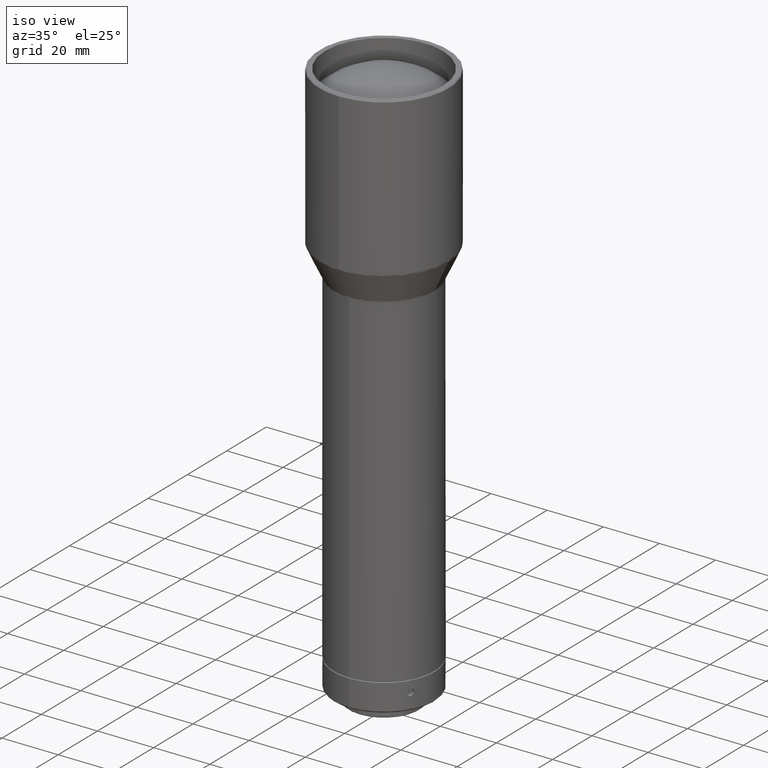
[diagram: clean part render]
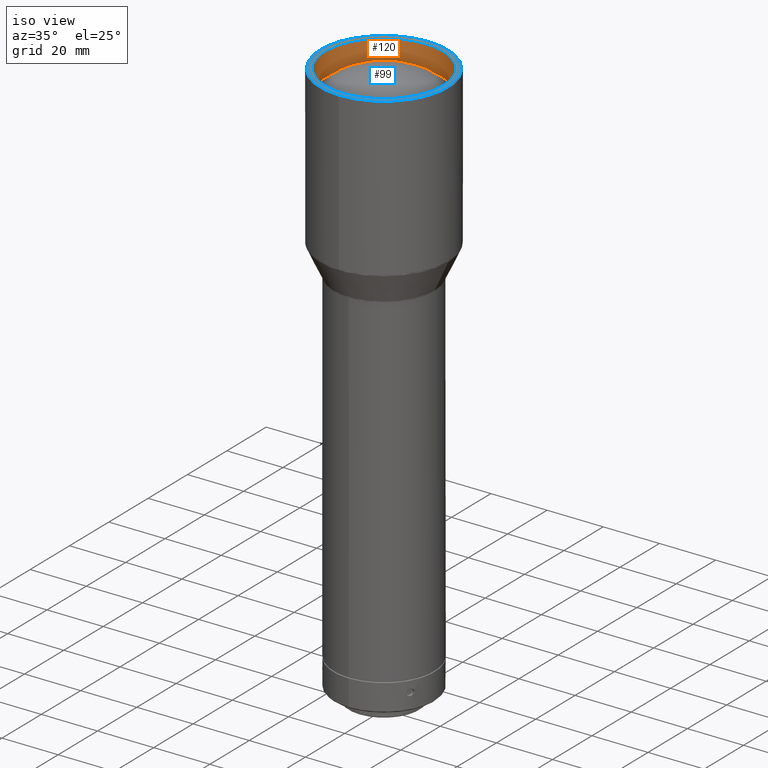
[diagram: same view with the hole feature highlighted: cylindrical wall and planar end face, labeled with their STEP entity ids]
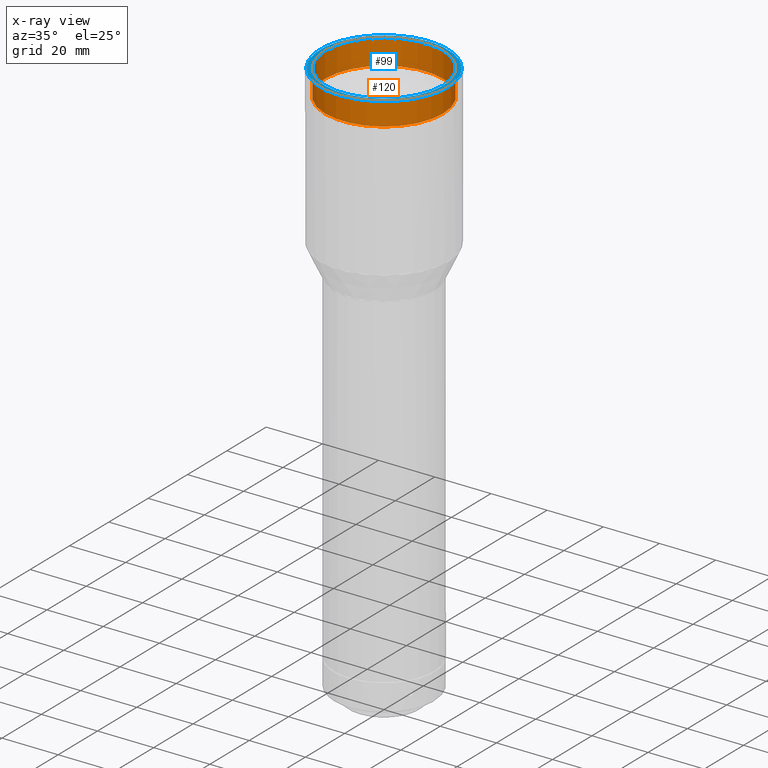
[diagram: x-ray of the same camera — body ghosted, the hole faces saturated]
A machine part, iso view. The highlighted faces form one hole feature of diameter 42 mm: the cylindrical wall (entity #120, orange) and its adjacent planar end face (entity #99, blue) — they share a circular edge in the B-rep.
The next image is the same camera in x-ray (body ghosted, the hole faces saturated) — the bore reads through the body.
Wall:
#73 = DIRECTION ( 'NONE',  ( -0.000000000000000000, -0.000000000000000000, 1.000000000000000000 ) ) ;
#120 = ADVANCED_FACE ( 'NONE', ( #802, #139 ), #546, .F. ) ;
#133 = AXIS2_PLACEMENT_3D ( 'NONE', #678, #433, #749 ) ;
#139 = FACE_OUTER_BOUND ( 'NONE', #445, .T. ) ;
#176 = EDGE_CURVE ( 'NONE', #767, #767, #536, .T. ) ;
#183 = EDGE_LOOP ( 'NONE', ( #187 ) ) ;
#184 = CARTESIAN_POINT ( 'NONE',  ( 0.000000000000000000, 0.000000000000000000, -567.0000000000001137 ) ) ;
#187 = ORIENTED_EDGE ( 'NONE', *, *, #727, .F. ) ;
#300 = VERTEX_POINT ( 'NONE', #374 ) ;
#311 = CARTESIAN_POINT ( 'NONE',  ( 21.00000000000000355, 0.000000000000000000, -567.0000000000001137 ) ) ;
#328 = DIRECTION ( 'NONE',  ( 1.000000000000000000, 0.000000000000000000, 0.000000000000000000 ) ) ;
#374 = CARTESIAN_POINT ( 'NONE',  ( 21.00000000000000355, 0.000000000000000000, -576.0000000000001137 ) ) ;
#433 = DIRECTION ( 'NONE',  ( 0.000000000000000000, 0.000000000000000000, 1.000000000000000000 ) ) ;
#445 = EDGE_LOOP ( 'NONE', ( #847 ) ) ;
#458 = CARTESIAN_POINT ( 'NONE',  ( 0.000000000000000000, 0.000000000000000000, -576.0000000000001137 ) ) ;
#500 = AXIS2_PLACEMENT_3D ( 'NONE', #184, #723, #518 ) ;
#518 = DIRECTION ( 'NONE',  ( 1.000000000000000000, 0.000000000000000000, 0.000000000000000000 ) ) ;
#536 = CIRCLE ( 'NONE', #500, 21.00000000000000355 ) ;
#546 = CYLINDRICAL_SURFACE ( 'NONE', #712, 21.00000000000000355 ) ;
#678 = CARTESIAN_POINT ( 'NONE',  ( 0.000000000000000000, 0.000000000000000000, -576.0000000000001137 ) ) ;
#703 = CIRCLE ( 'NONE', #133, 21.00000000000000355 ) ;
#712 = AXIS2_PLACEMENT_3D ( 'NONE', #458, #73, #328 ) ;
#723 = DIRECTION ( 'NONE',  ( 0.000000000000000000, 0.000000000000000000, 1.000000000000000000 ) ) ;
#727 = EDGE_CURVE ( 'NONE', #300, #300, #703, .T. ) ;
#749 = DIRECTION ( 'NONE',  ( 1.000000000000000000, 0.000000000000000000, 0.000000000000000000 ) ) ;
#767 = VERTEX_POINT ( 'NONE', #311 ) ;
#802 = FACE_OUTER_BOUND ( 'NONE', #183, .T. ) ;
#847 = ORIENTED_EDGE ( 'NONE', *, *, #176, .T. ) ;
End face:
#17 = FACE_BOUND ( 'NONE', #709, .T. ) ;
#31 = AXIS2_PLACEMENT_3D ( 'NONE', #282, #132, #390 ) ;
#99 = ADVANCED_FACE ( 'NONE', ( #17, #721 ), #405, .F. ) ;
#132 = DIRECTION ( 'NONE',  ( -4.314083075427408311E-32, -2.379644031336606723E-17, -1.000000000000000000 ) ) ;
#176 = EDGE_CURVE ( 'NONE', #767, #767, #536, .T. ) ;
#184 = CARTESIAN_POINT ( 'NONE',  ( 0.000000000000000000, 0.000000000000000000, -567.0000000000001137 ) ) ;
#234 = CARTESIAN_POINT ( 'NONE',  ( 8.673617379884035472E-15, 22.70000000000000639, -567.0000000000001137 ) ) ;
#243 = CIRCLE ( 'NONE', #396, 22.70000000000000639 ) ;
#273 = DIRECTION ( 'NONE',  ( -3.640699327764161545E-31, 2.413528314402517442E-15, -1.000000000000000000 ) ) ;
#282 = CARTESIAN_POINT ( 'NONE',  ( 8.018944991708160738E-15, 21.75000000000000355, -567.0000000000001137 ) ) ;
#311 = CARTESIAN_POINT ( 'NONE',  ( 21.00000000000000355, 0.000000000000000000, -567.0000000000001137 ) ) ;
#390 = DIRECTION ( 'NONE',  ( 0.000000000000000000, 1.000000000000000000, -2.379644031336606723E-17 ) ) ;
#396 = AXIS2_PLACEMENT_3D ( 'NONE', #793, #273, #530 ) ;
#405 = PLANE ( 'NONE',  #31 ) ;
#412 = ORIENTED_EDGE ( 'NONE', *, *, #176, .F. ) ;
#500 = AXIS2_PLACEMENT_3D ( 'NONE', #184, #723, #518 ) ;
#518 = DIRECTION ( 'NONE',  ( 1.000000000000000000, 0.000000000000000000, 0.000000000000000000 ) ) ;
#530 = DIRECTION ( 'NONE',  ( 0.000000000000000000, 1.000000000000000000, 0.000000000000000000 ) ) ;
#533 = EDGE_CURVE ( 'NONE', #827, #827, #243, .T. ) ;
#536 = CIRCLE ( 'NONE', #500, 21.00000000000000355 ) ;
#640 = ORIENTED_EDGE ( 'NONE', *, *, #533, .F. ) ;
#709 = EDGE_LOOP ( 'NONE', ( #412 ) ) ;
#717 = EDGE_LOOP ( 'NONE', ( #640 ) ) ;
#721 = FACE_OUTER_BOUND ( 'NONE', #717, .T. ) ;
#723 = DIRECTION ( 'NONE',  ( 0.000000000000000000, 0.000000000000000000, 1.000000000000000000 ) ) ;
#767 = VERTEX_POINT ( 'NONE', #311 ) ;
#793 = CARTESIAN_POINT ( 'NONE',  ( 8.673617379884035472E-15, -8.668619347448020136E-16, -567.0000000000001137 ) ) ;
#827 = VERTEX_POINT ( 'NONE', #234 ) ;